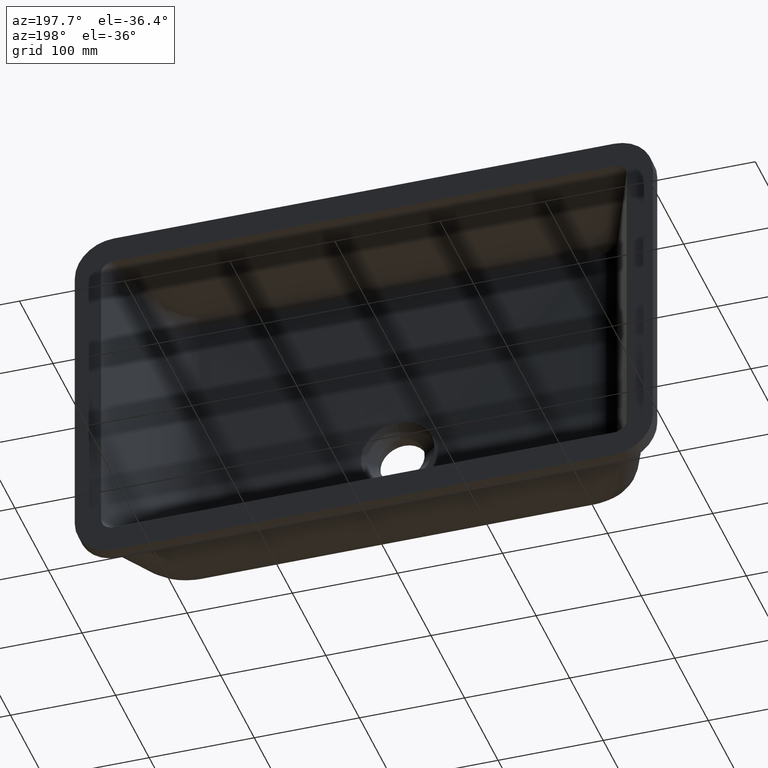
[diagram: clean part render]
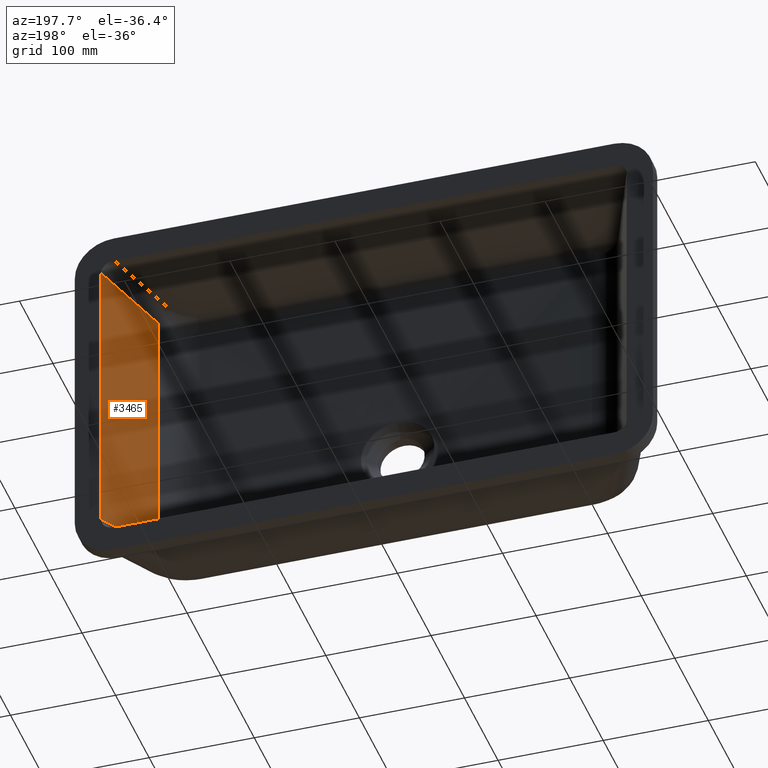
[diagram: same view with one face highlighted and labeled with its STEP entity id]
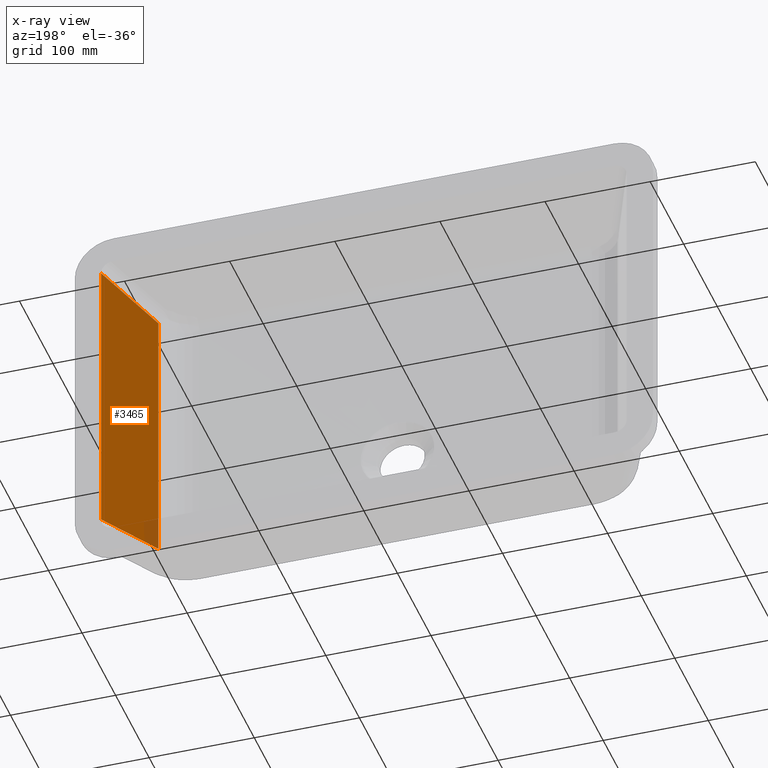
[diagram: x-ray of the same camera — body ghosted, the highlighted face saturated]
A machine part, auxiliary view. The second image highlights one B-rep face of the part: STEP entity #3465.
The next image is the same camera in x-ray: the body ghosted, the highlighted face saturated — about 3% of this face is hidden behind the body in this view.
In plain terms, the highlighted planar face has unit normal (0.9216, -0.3881, 0).
Its self-contained STEP definition (entity closure, byte-faithful):
#53 = CARTESIAN_POINT ( 'NONE',  ( 250.0000000000000000, 0.000000000000000000, -138.5866022769492361 ) ) ;
#124 = DIRECTION ( 'NONE',  ( 0.3840122885898558103, 0.9120291854009066057, -0.1440046082211953737 ) ) ;
#486 = AXIS2_PLACEMENT_3D ( 'NONE', #2231, #3673, #1845 ) ;
#510 = ORIENTED_EDGE ( 'NONE', *, *, #5538, .T. ) ;
#558 = EDGE_LOOP ( 'NONE', ( #5168, #510, #2346, #3636 ) ) ;
#985 = CARTESIAN_POINT ( 'NONE',  ( 219.0181073675643404, -73.58199500203464538, -123.5866022769492929 ) ) ;
#1128 = CARTESIAN_POINT ( 'NONE',  ( 250.6311556344544158, 1.498994631829237090, -138.8232856398696526 ) ) ;
#1256 = CARTESIAN_POINT ( 'NONE',  ( 250.0000000000000000, 0.000000000000000000, 138.5866022769492361 ) ) ;
#1514 = EDGE_CURVE ( 'NONE', #5064, #3920, #4418, .T. ) ;
#1562 = LINE ( 'NONE', #985, #6069 ) ;
#1600 = EDGE_CURVE ( 'NONE', #1807, #2097, #3084, .T. ) ;
#1659 = CARTESIAN_POINT ( 'NONE',  ( 250.0000000000000000, 0.000000000000000000, 150.0000000000000284 ) ) ;
#1807 = VERTEX_POINT ( 'NONE', #1256 ) ;
#1845 = DIRECTION ( 'NONE',  ( 0.000000000000000000, 0.000000000000000000, 1.000000000000000000 ) ) ;
#2055 = CARTESIAN_POINT ( 'NONE',  ( 234.0412938833023304, -37.90192702715695106, 132.6020874831876313 ) ) ;
#2097 = VERTEX_POINT ( 'NONE', #3301 ) ;
#2231 = CARTESIAN_POINT ( 'NONE',  ( 250.0000000000000000, 0.000000000000000000, -149.9999999999999716 ) ) ;
#2346 = ORIENTED_EDGE ( 'NONE', *, *, #1514, .F. ) ;
#2955 = DIRECTION ( 'NONE',  ( -0.3840122885898557548, -0.9120291854009064947, -0.1440046082211958733 ) ) ;
#3084 = LINE ( 'NONE', #2055, #5342 ) ;
#3301 = CARTESIAN_POINT ( 'NONE',  ( 219.0181073675643404, -73.58199500203464538, 126.9683925397858673 ) ) ;
#3465 = ADVANCED_FACE ( 'NONE', ( #5610 ), #6087, .F. ) ;
#3509 = LINE ( 'NONE', #1659, #5049 ) ;
#3636 = ORIENTED_EDGE ( 'NONE', *, *, #4356, .F. ) ;
#3673 = DIRECTION ( 'NONE',  ( 0.9216353751380651493, -0.3880570000581330947, 0.000000000000000000 ) ) ;
#3920 = VERTEX_POINT ( 'NONE', #53 ) ;
#4006 = VECTOR ( 'NONE', #124, 1000.000000000000114 ) ;
#4109 = CARTESIAN_POINT ( 'NONE',  ( 219.0181073675643404, -73.58199500203464538, -126.9683925397859241 ) ) ;
#4356 = EDGE_CURVE ( 'NONE', #2097, #5064, #1562, .T. ) ;
#4400 = DIRECTION ( 'NONE',  ( 0.000000000000000000, 0.000000000000000000, -1.000000000000000000 ) ) ;
#4418 = LINE ( 'NONE', #1128, #4006 ) ;
#5042 = DIRECTION ( 'NONE',  ( 0.000000000000000000, 0.000000000000000000, -1.000000000000000000 ) ) ;
#5049 = VECTOR ( 'NONE', #5042, 1000.000000000000000 ) ;
#5064 = VERTEX_POINT ( 'NONE', #4109 ) ;
#5168 = ORIENTED_EDGE ( 'NONE', *, *, #1600, .F. ) ;
#5342 = VECTOR ( 'NONE', #2955, 1000.000000000000114 ) ;
#5538 = EDGE_CURVE ( 'NONE', #1807, #3920, #3509, .T. ) ;
#5610 = FACE_OUTER_BOUND ( 'NONE', #558, .T. ) ;
#6069 = VECTOR ( 'NONE', #4400, 1000.000000000000000 ) ;
#6087 = PLANE ( 'NONE',  #486 ) ;